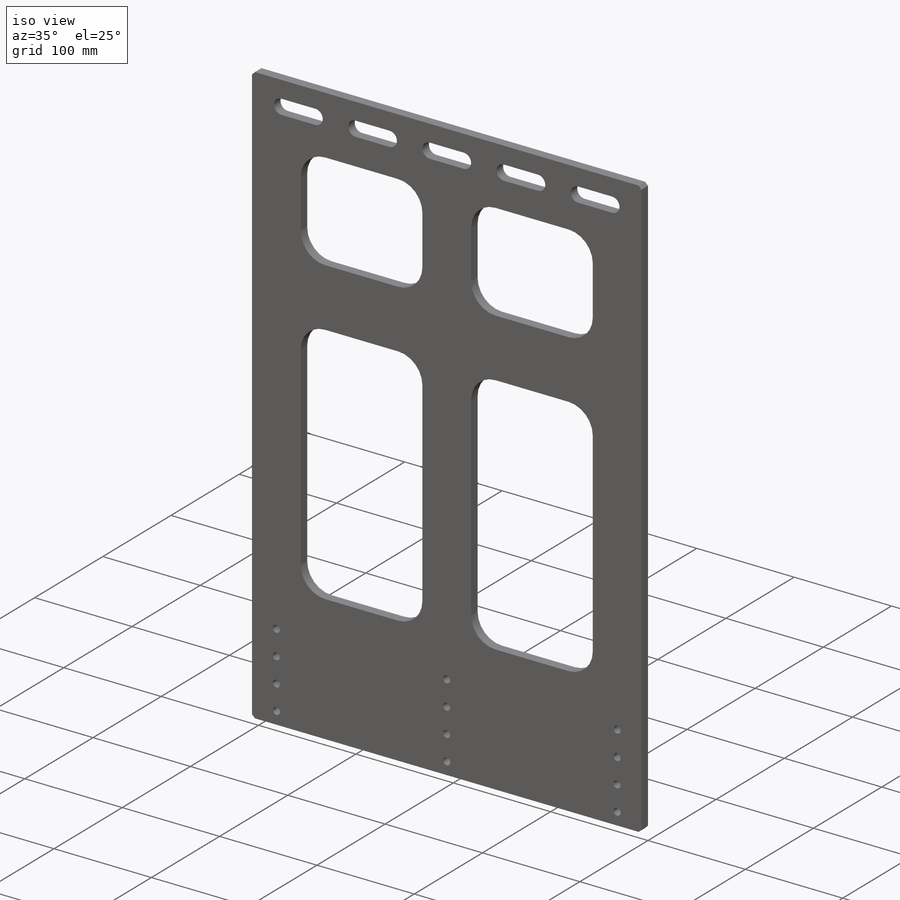
[diagram: iso view]
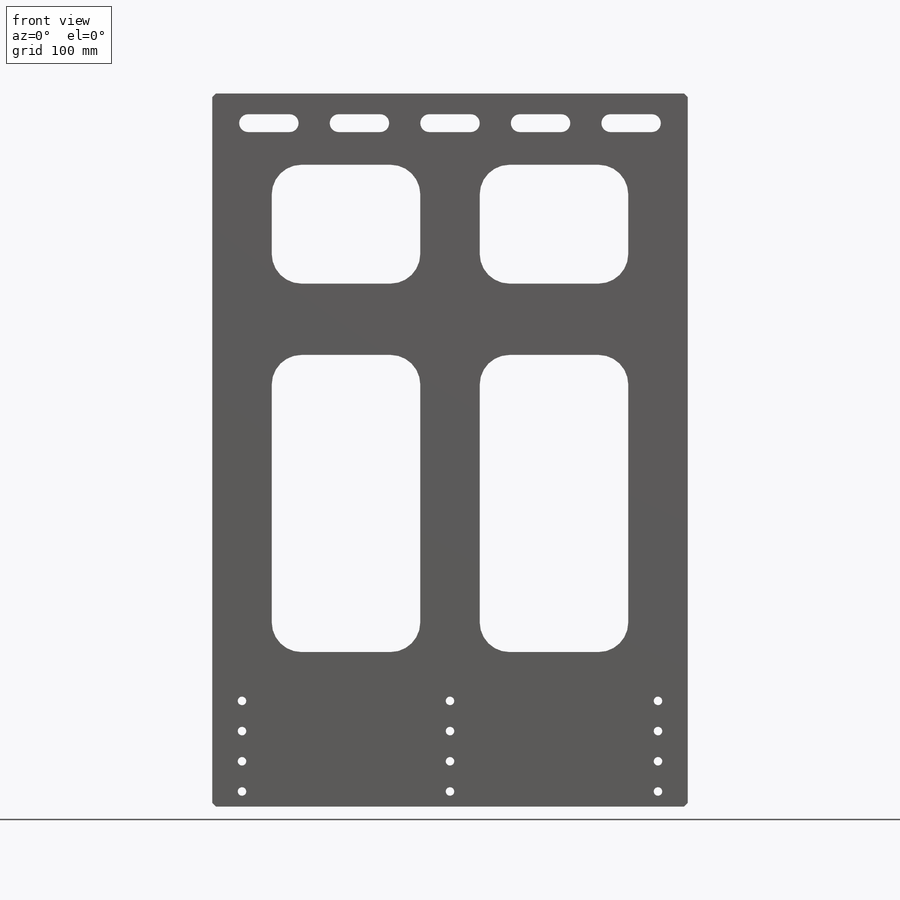
[diagram: front view]
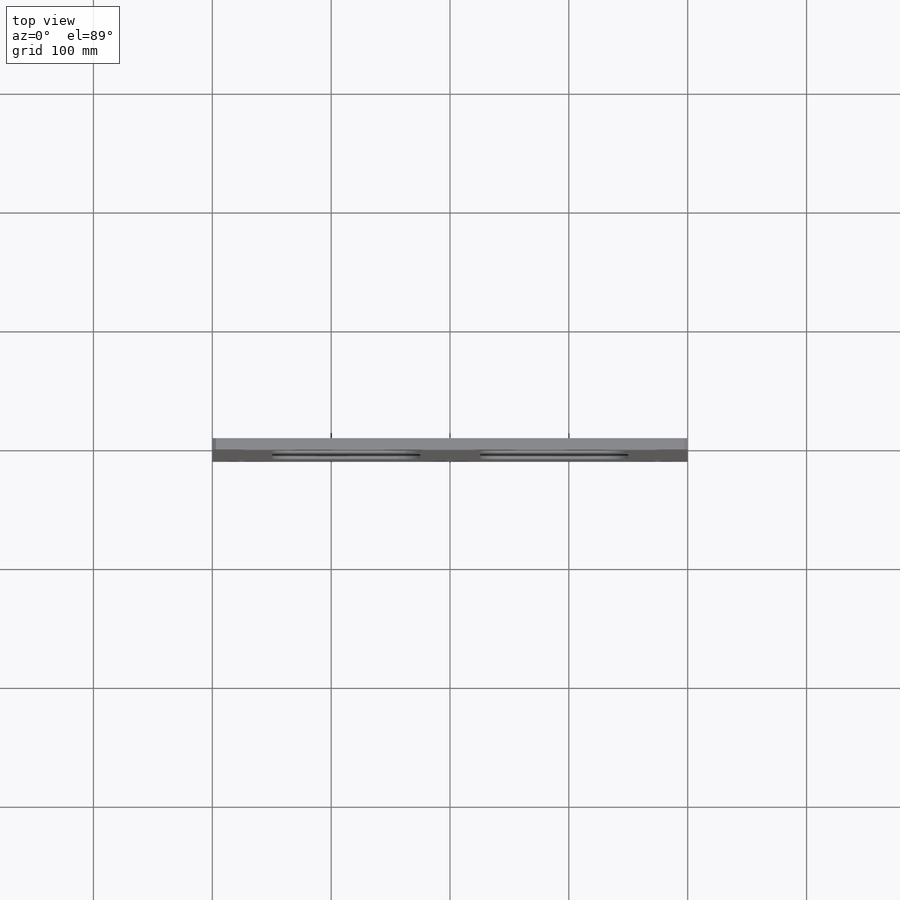
[diagram: top view]
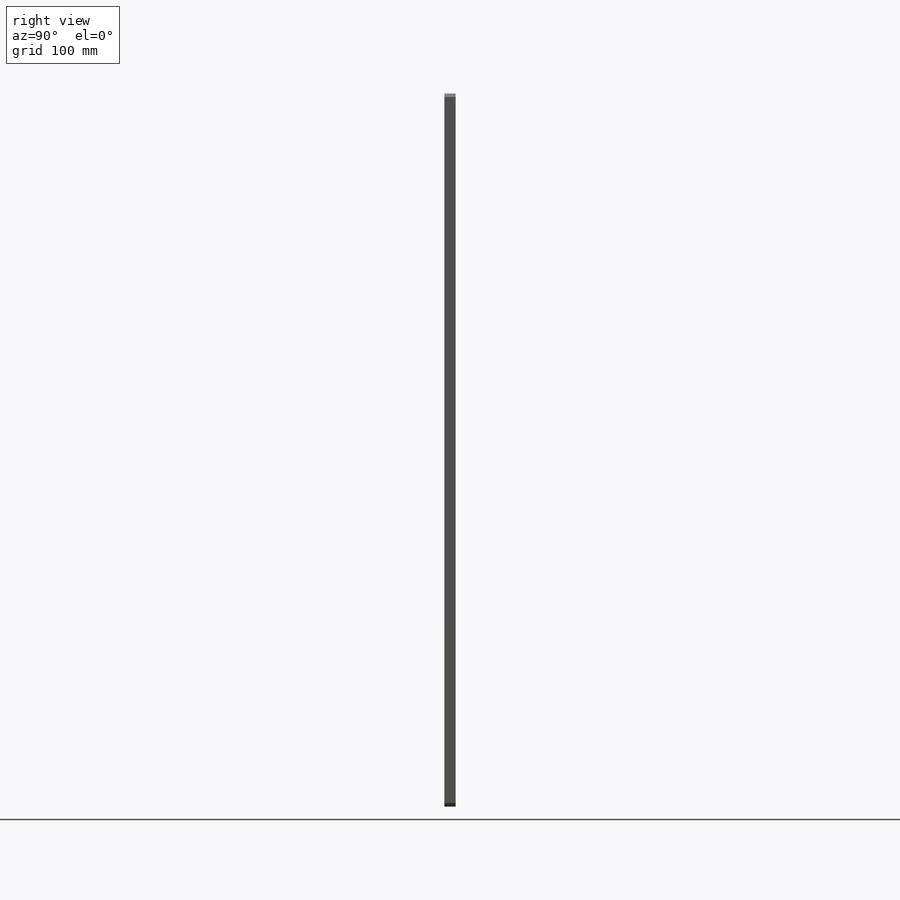
[diagram: right view]
SOLIDWORKS PART (.sldprt)
format: sldprt  version: not decoded by parser v0  size: 370,176 bytes
history: native  units: mm
features: sketch x6, extrude x2, pattern_linear x2, cut_extrude x2, material x1, hole x1, fillet x1, chamfer x1 (+11 scaffold rows collapsed)
feature tree (27):
  scaffold x11  (default folders/planes/origin — collapsed)
  material  "6061-T6 (SS)"
  sketch  "Sketch1"  dims[c1.D3=~63.091257mm c1.D1=400.0mm c1.D2=600.0mm c2.D3=25.0mm c2.D4=15.0mm c2.D5=25.0mm]
  extrude  "Boss-Extrude1"  Depth=9.525mm
  hole  "1/4 Clearance Hole1"  Diameter=7.14248mm Depth=9.525mm
  sketch  "Sketch4"  dims[D1=350.0mm D2=25.4mm D3=25.4mm]
  sketch  "Sketch5"  dims[hole-wizard template sketch: 60 standard entries collapsed; hole parameters kept: c18.Thru Hole Depth=9.525mm]
  pattern_linear  "LPattern1"  Count1=2 Count2=1 Spacing1=50.8mm Spacing2=10mm
  sketch  "Sketch8"  dims[D1=15.0mm D2=35.0mm D3=25.0mm]
  cut_extrude  "Cut-Extrude2"  [1 undecoded]
  pattern_linear  "LPattern2"  Count1=3 Count2=3 Spacing1=76.2mm Spacing2=76.2mm
  sketch  "Sketch6"  dims[c1.D1=130.0mm c1.D2=60.0mm c1.D3=50.0mm c1.D4=200.0mm c1.D5=250.0mm c2.D4=100.0mm]
  cut_extrude  "Cut-Extrude1"  [1 undecoded]
  sketch  "Sketch7"  dims[D1=50.0mm]
  extrude  "Boss-Extrude2"  [1 undecoded]
  fillet  "Fillet1"  Radius=25mm
  chamfer  "Chamfer2"  Distance=3mm Angle=45deg
decode coverage: 12 of 15 modeling features carry decoded parameters
note: ~ marks probable driven/reference dimensions
note: 3 parameter values undecoded
summary: no parameter record found for 3 features
note: suppression state not decoded; provenance and decode notes live in map.json
